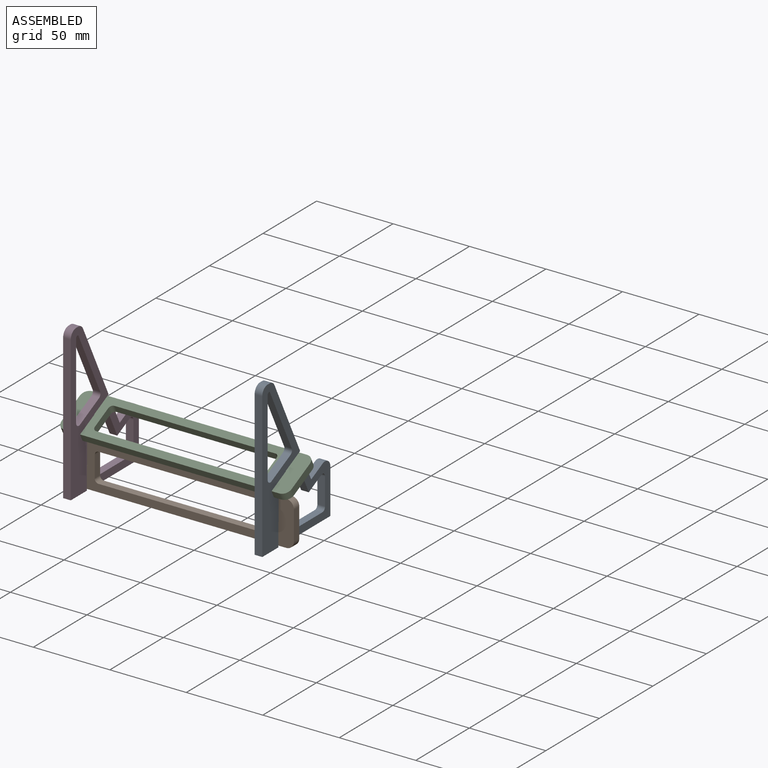
[diagram: assembled view]
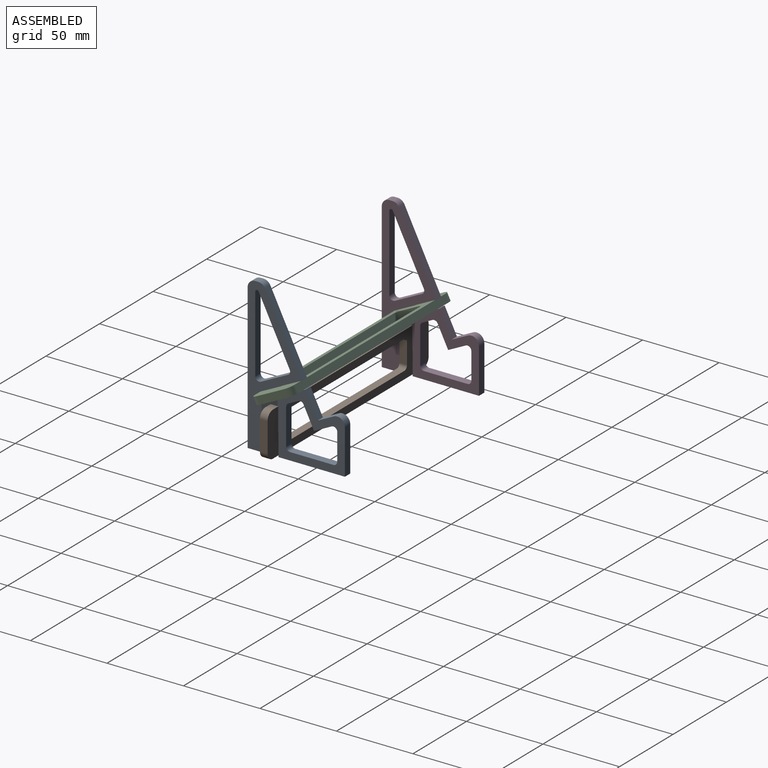
[diagram: assembled view, second angle]
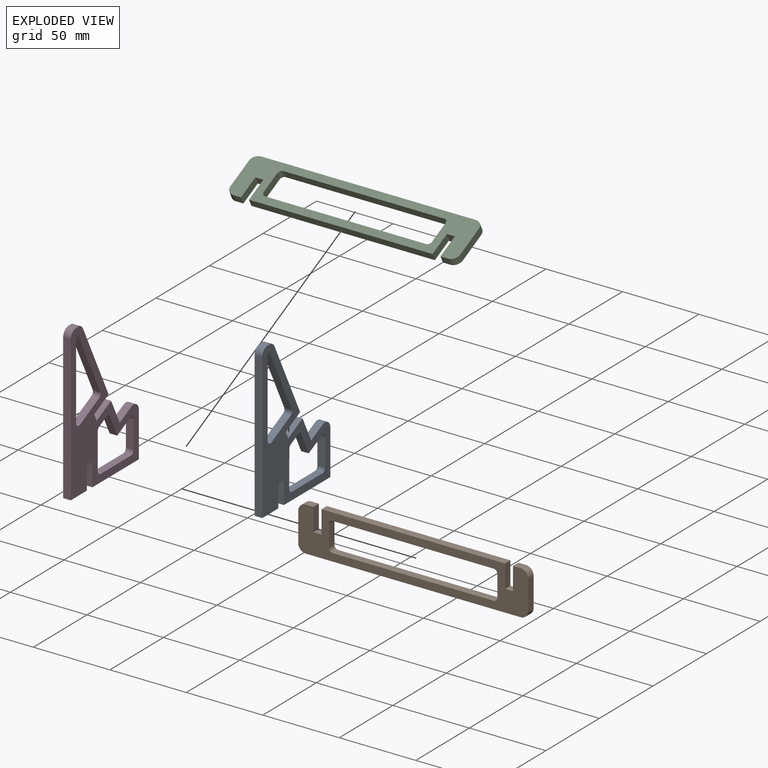
[diagram: exploded view]
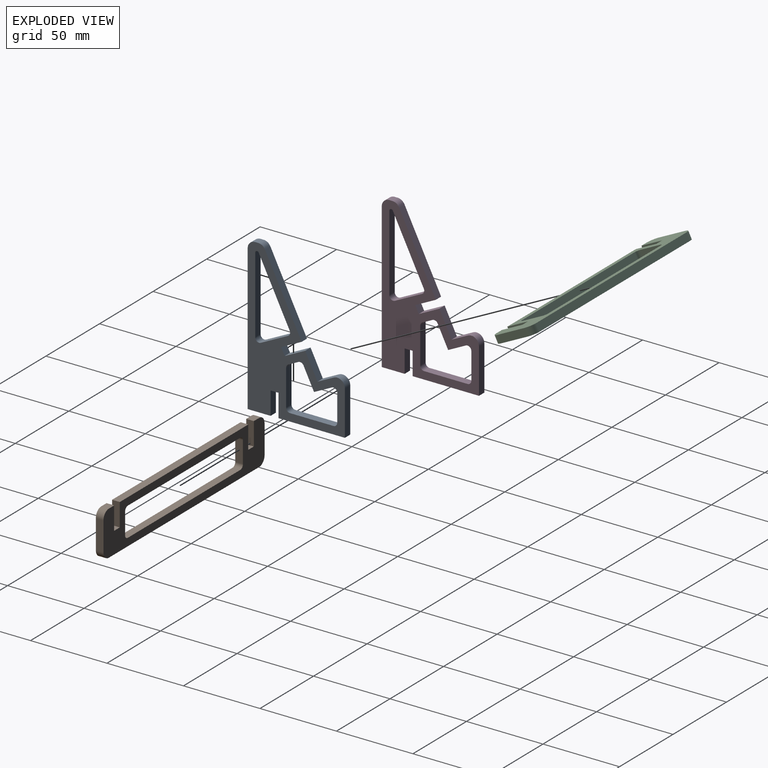
[diagram: exploded view, second angle]
ASSEMBLY  parts=4 mates=3
PART A: 38 faces, bbox 63.6x100x5 mm
  f0: cylinder r=5mm len=7.23mm, axis (0,0,-1), area 50.8mm2, adj f1,f35,f36,f37
  f1: plane 29.23x5mm, normal (-1,0,0), area 146.1mm2, adj f0,f2,f36,f37
  f2: plane 43.37x5mm, normal (0,-1,0), area 216.8mm2, adj f1,f3,f36,f37
  f3: plane 15x5mm, normal (1,0,0), area 75mm2, adj f2,f4,f36,f37
  f4: plane 5.2x5mm, normal (0,-1,0), area 26mm2, adj f3,f5,f36,f37
  f5: plane 15x5mm, normal (-1,0,0), area 75mm2, adj f4,f6,f36,f37
  f6: plane 15x5mm, normal (0,-1,0), area 75mm2, adj f5,f7,f36,f37
  f7: plane 95x5mm, normal (1,0,0), area 475mm2, adj f6,f8,f36,f37
  f8: cylinder r=5mm len=5mm, axis (0,0,-1), area 39.3mm2, adj f7,f9,f36,f37
  f9: plane 5x1.9mm, normal (0,1,0), area 9.5mm2, adj f8,f10,f36,f37
  f10: cylinder r=5mm len=5mm, axis (0,0,-1), area 27.7mm2, adj f9,f11,f36,f37
  f11: plane 48.07x23.94mm, normal (-0.9,0.45,0), area 268.5mm2, adj f10,f12,f36,f37
  f12: plane 13.43x6.69mm, normal (-0.45,-0.9,0), area 75mm2, adj f11,f13,f36,f37
  f13: plane 5x4.65mm, normal (-0.9,0.45,0), area 26mm2, adj f12,f14,f36,f37
  f14: plane 13.43x6.69mm, normal (0.45,0.9,0), area 75mm2, adj f13,f15,f36,f37
  f15: plane 16.11x8.02mm, normal (-0.9,0.45,0), area 90mm2, adj f14,f35,f36,f37
  f16: plane 17.76x8.85mm, normal (0.45,0.9,0), area 99.2mm2, adj f17,f33,f36,f37
  f17: cylinder r=2.5mm len=5mm, axis (0,0,-1), area 19.6mm2, adj f16,f18,f36,f37
  f18: plane 40.75x20.29mm, normal (0.9,-0.45,0), area 227.6mm2, adj f17,f19,f36,f37
  f19: cylinder r=1.1mm len=5mm, axis (0,0,-1), area 6.1mm2, adj f18,f20,f36,f37
  f20: plane 5x0.02mm, normal (0,-1,0), area 0.1mm2, adj f19,f21,f36,f37
  f21: cylinder r=1.2mm len=5mm, axis (0,0,-1), area 9.4mm2, adj f20,f22,f36,f37
  f22: plane 50.12x5mm, normal (-1,0,0), area 250.6mm2, adj f21,f33,f36,f37
  f23: plane 11.54x5.74mm, normal (-0.45,-0.9,0), area 64.4mm2, adj f24,f34,f36,f37
  f24: plane 13.87x6.91mm, normal (0.9,-0.45,0), area 77.5mm2, adj f23,f25,f36,f37
  f25: cylinder r=2.5mm len=5mm, axis (0,0,-1), area 19.6mm2, adj f24,f26,f36,f37
  f26: plane 6.57x5mm, normal (-0.45,-0.9,0), area 36.7mm2, adj f25,f27,f36,f37
  f27: cylinder r=2.5mm len=5mm, axis (0,0,-1), area 13.9mm2, adj f26,f28,f36,f37
  f28: plane 23.67x5mm, normal (-1,0,0), area 118.4mm2, adj f27,f29,f36,f37
  f29: cylinder r=2.5mm len=5mm, axis (0,0,-1), area 19.6mm2, adj f28,f30,f36,f37
  f30: plane 28.37x5mm, normal (0,1,0), area 141.8mm2, adj f29,f31,f36,f37
  f31: cylinder r=2.5mm len=5mm, axis (0,0,-1), area 19.6mm2, adj f30,f32,f36,f37
  f32: plane 17.69x5mm, normal (1,0,0), area 88.5mm2, adj f31,f34,f36,f37
  f33: cylinder r=2.5mm len=5mm, axis (0,0,-1), area 25.4mm2, adj f16,f22,f36,f37
  f34: cylinder r=2.5mm len=5mm, axis (0,0,-1), area 25.4mm2, adj f23,f32,f36,f37
  f35: plane 10.67x5.32mm, normal (0.45,0.9,0), area 59.6mm2, adj f0,f15,f36,f37
  f36: plane 100x63.57mm, normal (0,0,1), area 2201.1mm2, adj f0,f1,f2,f3,f4,f5,f6,f7
  f37: plane 100x63.57mm, normal (0,0,-1), area 2201.1mm2, adj f0,f1,f2,f3,f4,f5,f6,f7
PART B: 26 faces, bbox 150.4x29x5 mm
  f0: cylinder r=2.5mm len=5mm, axis (0,0,-1), area 19.6mm2, adj f1,f23,f24,f25
  f1: plane 105x5mm, normal (0,-1,0), area 525mm2, adj f0,f2,f24,f25
  f2: cylinder r=2.5mm len=5mm, axis (0,0,-1), area 19.6mm2, adj f1,f3,f24,f25
  f3: plane 14x5mm, normal (-1,0,0), area 70mm2, adj f2,f4,f24,f25
  f4: cylinder r=2.5mm len=5mm, axis (0,0,-1), area 19.6mm2, adj f3,f5,f24,f25
  f5: plane 105x5mm, normal (0,1,0), area 525mm2, adj f4,f6,f24,f25
  f6: cylinder r=2.5mm len=5mm, axis (0,0,-1), area 19.6mm2, adj f5,f23,f24,f25
  f7: plane 15x5mm, normal (1,0,0), area 75mm2, adj f8,f22,f24,f25
  f8: plane 5x5mm, normal (0,1,0), area 25mm2, adj f7,f9,f24,f25
  f9: cylinder r=5mm len=5mm, axis (0,0,-1), area 39.3mm2, adj f8,f10,f24,f25
  f10: plane 19x5mm, normal (-1,0,0), area 95mm2, adj f9,f11,f24,f25
  f11: cylinder r=5mm len=5mm, axis (0,0,-1), area 39.3mm2, adj f10,f12,f24,f25
  f12: plane 140.4x5mm, normal (0,-1,0), area 702mm2, adj f11,f13,f24,f25
  f13: cylinder r=5mm len=5mm, axis (0,0,-1), area 39.3mm2, adj f12,f14,f24,f25
  f14: plane 19x5mm, normal (1,0,0), area 95mm2, adj f13,f15,f24,f25
  f15: cylinder r=5mm len=5mm, axis (0,0,-1), area 39.3mm2, adj f14,f16,f24,f25
  f16: plane 5x5mm, normal (0,1,0), area 25mm2, adj f15,f17,f24,f25
  f17: plane 15x5mm, normal (-1,0,0), area 75mm2, adj f16,f18,f24,f25
  f18: plane 5.2x5mm, normal (0,1,0), area 26mm2, adj f17,f19,f24,f25
  f19: plane 15x5mm, normal (1,0,0), area 75mm2, adj f18,f20,f24,f25
  f20: plane 120x5mm, normal (0,1,0), area 600mm2, adj f19,f21,f24,f25
  f21: plane 15x5mm, normal (-1,0,0), area 75mm2, adj f20,f22,f24,f25
  f22: plane 5.2x5mm, normal (0,1,0), area 26mm2, adj f7,f21,f24,f25
  f23: plane 14x5mm, normal (1,0,0), area 70mm2, adj f0,f6,f24,f25
  f24: plane 150.4x29mm, normal (0,0,1), area 2099.5mm2, adj f0,f1,f2,f3,f4,f5,f6,f7
  f25: plane 150.4x29mm, normal (0,0,-1), area 2099.5mm2, adj f0,f1,f2,f3,f4,f5,f6,f7
PART C: same geometry as B
PART D: same geometry as A
PLACE A rot(axis=(0.58,-0.58,-0.58),120deg) t=(88.46,-63.02,106.04)mm
PLACE B rot(axis=(1,0,0),90deg) t=(-11.17,-71.06,75.34)mm
PLACE C rot(axis=(-1,0,0),153.5deg) t=(-11.17,-90.34,68.61)mm
PLACE D rot(axis=(0.58,-0.58,-0.58),120deg) t=(-36.74,-63.02,106.04)mm
MATE fastened A.f4 <-> B.f18  axis (0,0,-1) through (85.96,-73.56,51.75)mm
MATE fastened B.f22 <-> D.f4  axis (0,0,1) through (-39.24,-73.56,51.75)mm
MATE fastened D.f13 <-> C.f22  axis (0,0.9,0.45) through (-39.24,-68.11,76.89)mm
